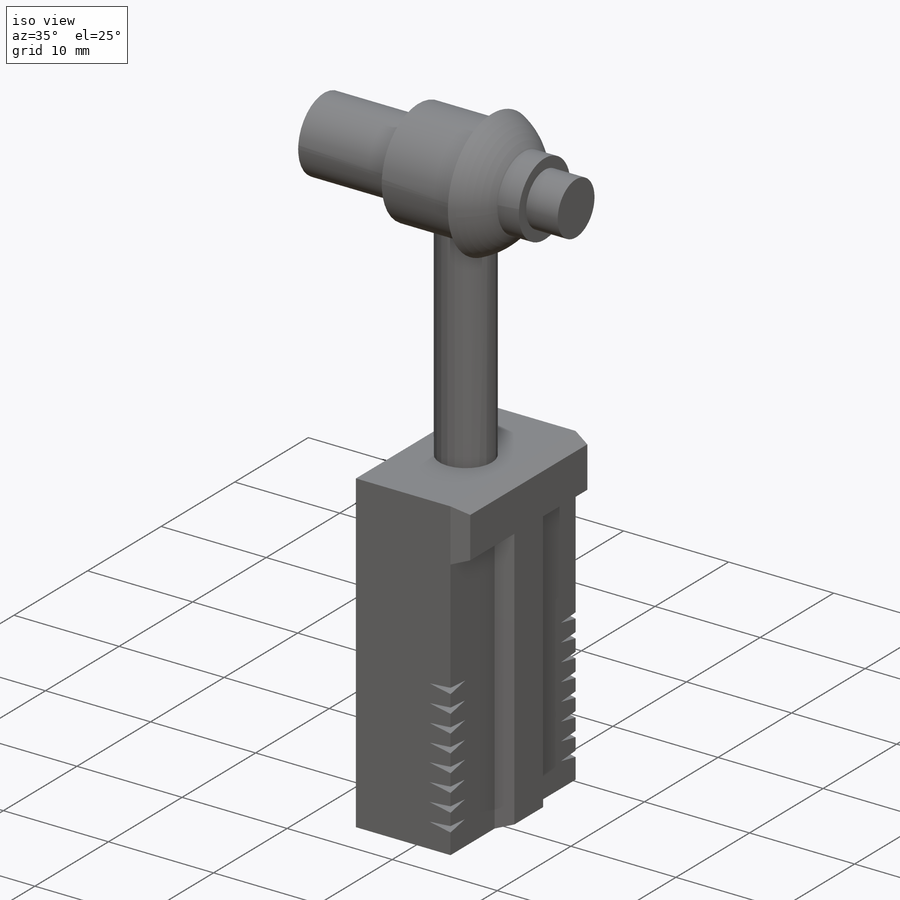
[diagram: iso view]
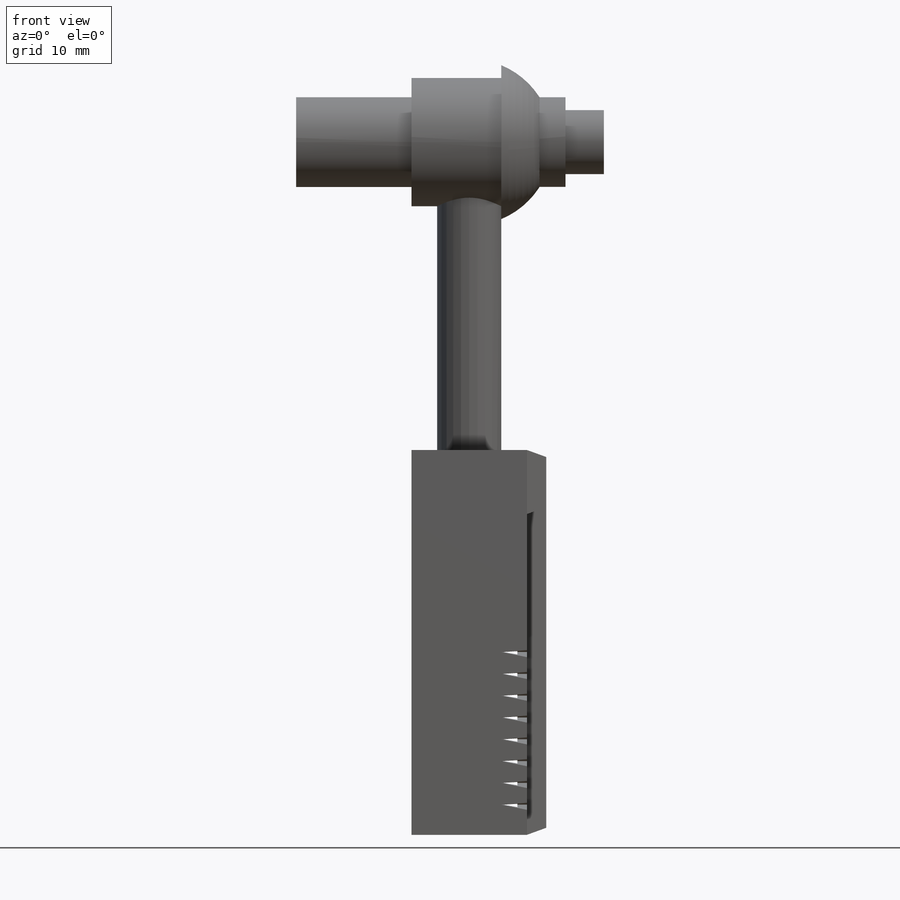
[diagram: front view]
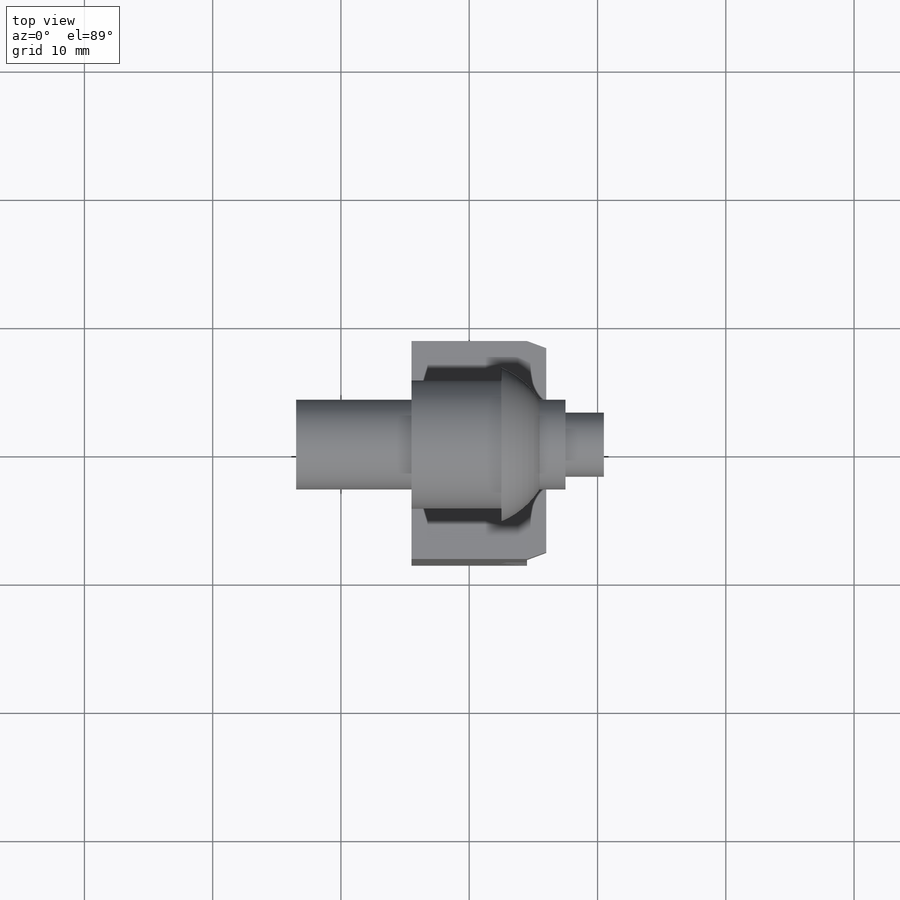
[diagram: top view]
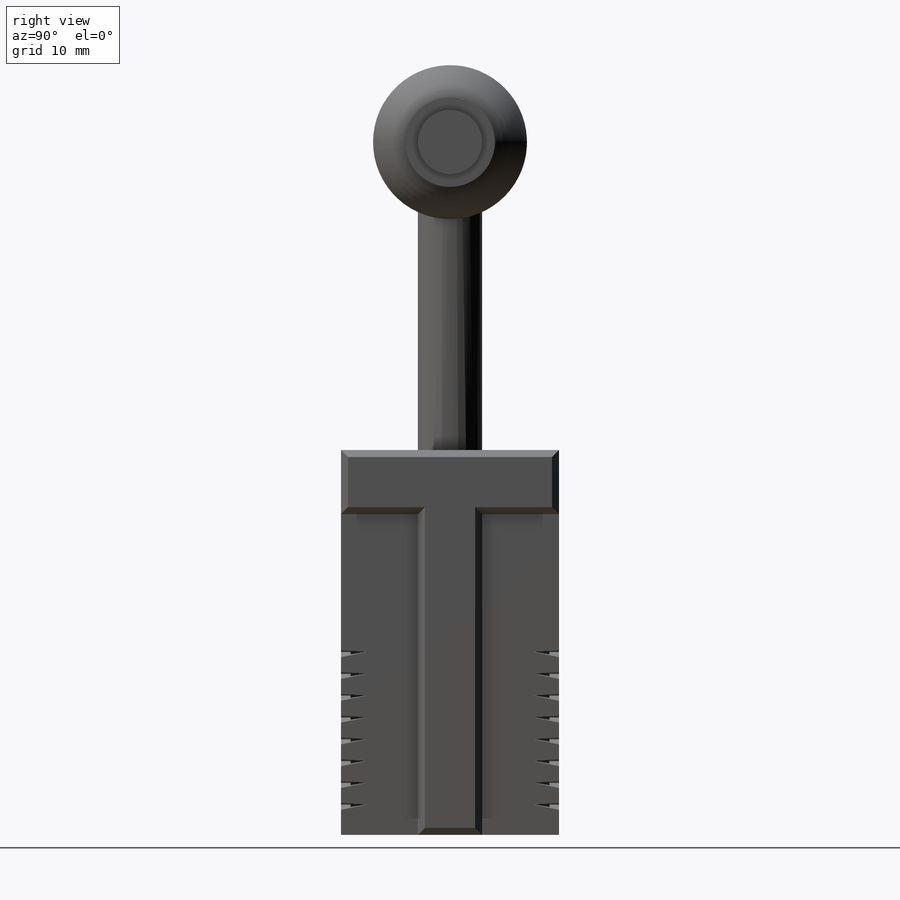
[diagram: right view]
SOLIDWORKS PART (.sldprt)
format: sldprt  version: not decoded by parser v0  size: 481,792 bytes
history: native  units: mm
features: sketch x9, extrude x7, material x1, shell x1, cut_revolve x1, pattern_linear x1, plane x1, revolve x1, mirror x1 (+13 scaffold rows collapsed)
feature tree (36):
  scaffold x13  (default folders/planes/origin — collapsed)
  material  "Material <not specified>"
  sketch  "Sketch2"  dims[D1=30.0mm D2=17.0mm]
  extrude  "Boss-Extrude1"  Depth=9mm
  shell  "Shell1"  Thickness=0.75mm
  sketch  "Sketch12"  dims[c1.D1=~0.69329mm c2.D1=15.0deg c2.D2=1.2mm c2.D3=2.5mm c3.D1=2.0mm c3.D2=0.15mm c3.D4=0.4mm]
  cut_revolve  "Cut-Revolve1"  Angle=360deg
  pattern_linear  "LPattern1"  Count1=8 Count2=1 Spacing1=1.7mm Spacing2=10mm
  plane  "Plane1"  Offset=24mm
  sketch  "Sketch5"  dims[c1.D1=12.0mm c1.D2=6.5mm c2.D1=12.0mm c2.D3=2.5mm]
  revolve  "Revolve1"  Angle=360deg
  sketch  "Sketch7"  dims[D1=10.0mm]
  extrude  "Boss-Extrude3"  [1 undecoded]
  sketch  "Sketch3"  dims[D1=5.0mm]
  extrude  "Boss-Extrude2"  [1 undecoded]
  sketch  "Sketch8"  dims[D1=7.0mm]
  extrude  "Boss-Extrude4"  Depth=9mm
  sketch  "Sketch9"  dims[D1=7.0mm D2=2.0mm]
  extrude  "Boss-Extrude5"  Depth=5mm
  sketch  "Sketch11"  dims[D1=5.0mm]
  extrude  "Boss-Extrude6"  Depth=3mm
  sketch  "Sketch13"  dims[D1=5.0mm D2=5.0mm]
  extrude  "Boss-Extrude7"  Depth=1.5mm
  mirror  "Mirror1"
decode coverage: 18 of 21 modeling features carry decoded parameters
note: ~ marks probable driven/reference dimensions
note: 2 parameter values undecoded
note: suppression state not decoded; provenance and decode notes live in map.json
